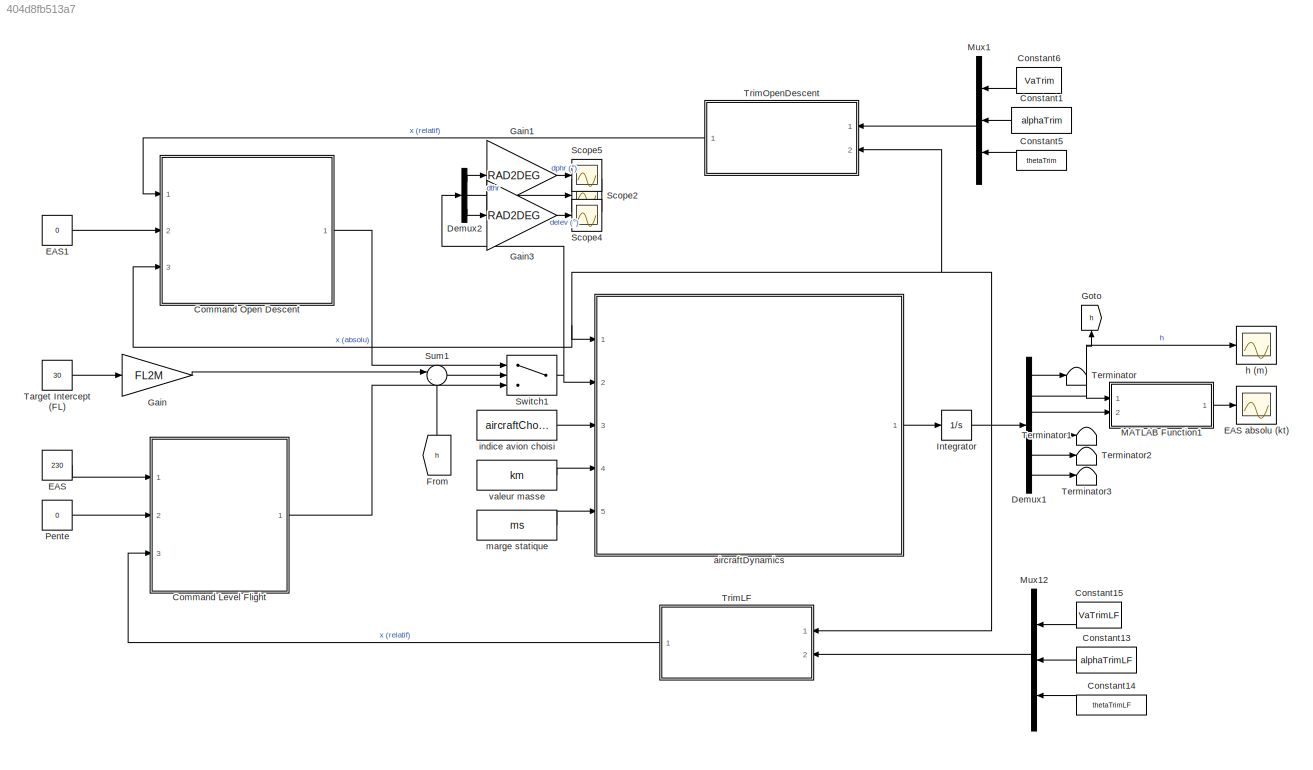
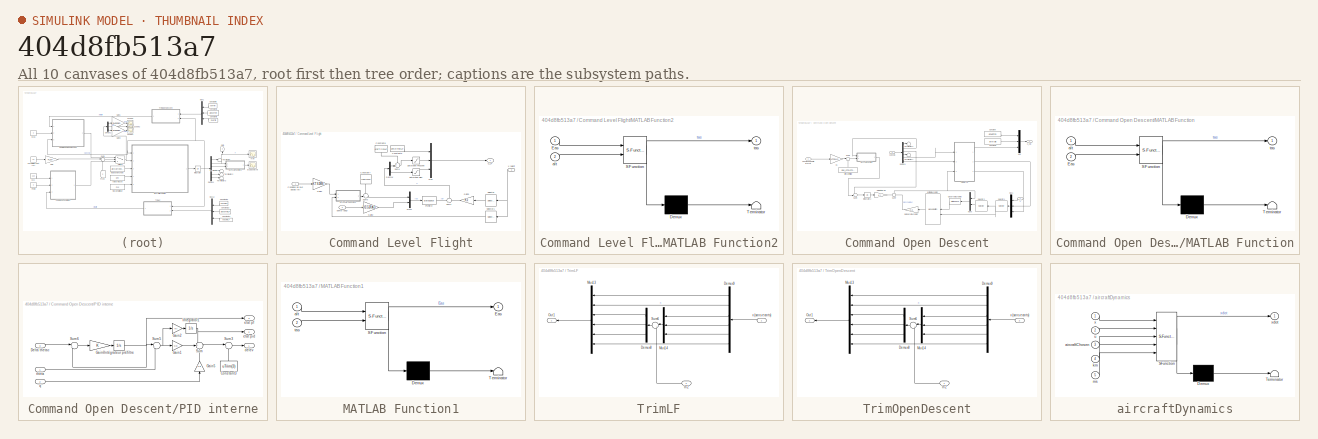
[diagram: thumbnail index - all 10 canvases of the model, root first then tree order]
MODEL slx_404d8fb513a7
KIND model
CONFIG AbsTol = auto
CONFIG EnableMultiTasking = off
CONFIG FixedStep = auto
CONFIG MaxStep = 1.2
CONFIG MinStep = auto
CONFIG RelTol = 1e-3
CONFIG SampleTimeConstraint = Unconstrained
CONFIG Solver = ode45
CONFIG SolverName = ode45
CONFIG StartTime = 0.0
CONFIG StopTime = 400
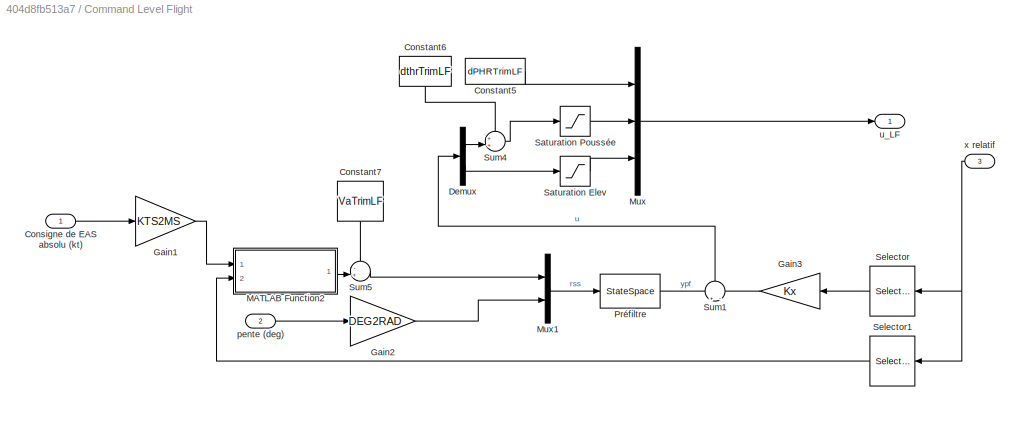
BLOCK [SubSystem] Command Level Flight
  Ports = [3, 1]
  RequestExecContextInheritance = off
BLOCK [Inport] Command Level Flight/Consigne de EAS absolu (kt)
  IconDisplay = Port number
BLOCK [Constant] Command Level Flight/Constant5
  Value = dPHRTrimLF
BLOCK [Constant] Command Level Flight/Constant6
  Value = dthrTrimLF
BLOCK [Constant] Command Level Flight/Constant7
  Value = VaTrimLF
BLOCK [Demux] Command Level Flight/Demux
  DisplayOption = bar
  Outputs = 2
  Ports = [1, 2]
BLOCK [Gain] Command Level Flight/Gain1
  Gain = KTS2MS
  OutDataTypeStr = Inherit: Inherit via internal rule
  ParamDataTypeStr = Inherit: Inherit via internal rule
  SaturateOnIntegerOverflow = off
BLOCK [Gain] Command Level Flight/Gain2
  Gain = DEG2RAD
  OutDataTypeStr = Inherit: Inherit via internal rule
  ParamDataTypeStr = Inherit: Inherit via internal rule
  SaturateOnIntegerOverflow = off
BLOCK [Gain] Command Level Flight/Gain3
  Gain = Kx
  Multiplication = Matrix(K*u) (u vector)
  OutDataTypeStr = Inherit: Inherit via internal rule
  ParamDataTypeStr = Inherit: Inherit via internal rule
  SaturateOnIntegerOverflow = off
BLOCK [SubSystem] Command Level Flight/MATLAB Function2
  ErrorFcn = Stateflow.Translate.translate
  PermitHierarchicalResolution = ExplicitOnly
  Ports = [2, 1]
  RequestExecContextInheritance = off
  SFBlockType = MATLAB Function
  TreatAsAtomicUnit = on
BLOCK [Demux] Command Level Flight/MATLAB Function2/ Demux 
  Outputs = 1
  Ports = [1, 1]
BLOCK [S-Function] Command Level Flight/MATLAB Function2/ SFunction 
  EnableBusSupport = on
  FunctionName = sf_sfun
  PortCounts = [2 2]
  Ports = [2, 2]
  SFcnIsStateOwnerBlock = off
  SFunctionDeploymentMode = off
  Tag = Stateflow S-Function Golf_Nonlin_Final 1
BLOCK [Terminator] Command Level Flight/MATLAB Function2/ Terminator 
BLOCK [Inport] Command Level Flight/MATLAB Function2/Eas
  IconDisplay = Port number
BLOCK [Inport] Command Level Flight/MATLAB Function2/alt
  IconDisplay = Port number
  Port = 2
BLOCK [Outport] Command Level Flight/MATLAB Function2/tas
  IconDisplay = Port number
BLOCK [Mux] Command Level Flight/Mux
  DisplayOption = bar
  Inputs = 3
  Ports = [3, 1]
BLOCK [Mux] Command Level Flight/Mux1
  DisplayOption = bar
  Inputs = 2
  Ports = [2, 1]
BLOCK [StateSpace] Command Level Flight/Préfiltre
  A = Ar
  B = Br
  C = -Kr
  D = Dpf
  InitialCondition = 0
  Ports = [1, 1]
BLOCK [Saturate] Command Level Flight/Saturation Elev
  InputPortMap = u0
  LowerLimit = -30*DEG2RAD
  Ports = [1, 1]
  UpperLimit = 30*DEG2RAD
BLOCK [Saturate] Command Level Flight/Saturation Poussée
  InputPortMap = u0
  LowerLimit = 0
  Ports = [1, 1]
  UpperLimit = 1
BLOCK [Selector] Command Level Flight/Selector
  IndexOptions = Index vector (dialog)
  Indices = [3:6]
  InputPortWidth = 6
  OutputSizes = 1
  Ports = [1, 1]
BLOCK [Selector] Command Level Flight/Selector1
  IndexOptions = Index vector (dialog)
  Indices = [2]
  InputPortWidth = 6
  OutputSizes = 1
  Ports = [1, 1]
BLOCK [Sum] Command Level Flight/Sum1
  IconShape = round
  InputSameDT = off
  Inputs = +|-
  OutDataTypeStr = Inherit: Inherit via internal rule
  Ports = [2, 1]
  SaturateOnIntegerOverflow = off
BLOCK [Sum] Command Level Flight/Sum4
  IconShape = round
  InputSameDT = off
  Inputs = ++|
  OutDataTypeStr = Inherit: Inherit via internal rule
  Ports = [2, 1]
  SaturateOnIntegerOverflow = off
BLOCK [Sum] Command Level Flight/Sum5
  IconShape = round
  InputSameDT = off
  Inputs = -+|
  OutDataTypeStr = Inherit: Inherit via internal rule
  Ports = [2, 1]
  SaturateOnIntegerOverflow = off
BLOCK [Inport] Command Level Flight/pente (deg)
  IconDisplay = Port number
  Port = 2
BLOCK [Outport] Command Level Flight/u_LF
  IconDisplay = Port number
BLOCK [Inport] Command Level Flight/x relatif
  IconDisplay = Port number
  Port = 3
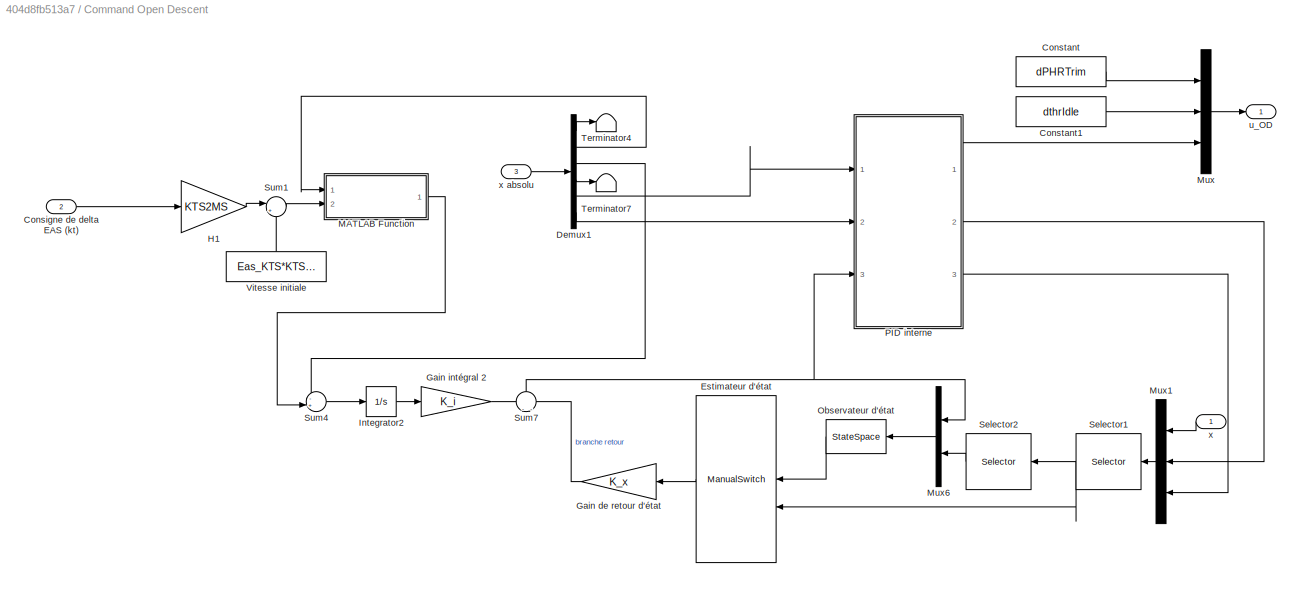
BLOCK [SubSystem] Command Open Descent
  Ports = [3, 1]
  RequestExecContextInheritance = off
BLOCK [Inport] Command Open Descent/Consigne de delta EAS (kt)
  IconDisplay = Port number
  Port = 2
BLOCK [Constant] Command Open Descent/Constant
  Value = dPHRTrim
BLOCK [Constant] Command Open Descent/Constant1
  Value = dthrIdle
BLOCK [Demux] Command Open Descent/Demux1
  DisplayOption = bar
  Outputs = 6
  Ports = [1, 6]
BLOCK [ManualSwitch] Command Open Descent/Estimateur d'état
  CurrentSetting = 0
BLOCK [Gain] Command Open Descent/Gain de retour d'état
  Gain = K_x
  Multiplication = Matrix(K*u) (u vector)
  OutDataTypeStr = Inherit: Inherit via internal rule
  ParamDataTypeStr = Inherit: Inherit via internal rule
  SaturateOnIntegerOverflow = off
BLOCK [Gain] Command Open Descent/Gain intégral 2
  Gain = K_i
  Multiplication = Matrix(K*u) (u vector)
  OutDataTypeStr = Inherit: Inherit via internal rule
  ParamDataTypeStr = Inherit: Inherit via internal rule
  SaturateOnIntegerOverflow = off
BLOCK [Gain] Command Open Descent/H1
  Gain = KTS2MS
  OutDataTypeStr = Inherit: Inherit via internal rule
  ParamDataTypeStr = Inherit: Inherit via internal rule
  SaturateOnIntegerOverflow = off
BLOCK [Integrator] Command Open Descent/Integrator2
  Ports = [1, 1]
BLOCK [SubSystem] Command Open Descent/MATLAB Function
  ErrorFcn = Stateflow.Translate.translate
  PermitHierarchicalResolution = ExplicitOnly
  Ports = [2, 1]
  RequestExecContextInheritance = off
  SFBlockType = MATLAB Function
  TreatAsAtomicUnit = on
BLOCK [Demux] Command Open Descent/MATLAB Function/ Demux 
  Outputs = 1
  Ports = [1, 1]
BLOCK [S-Function] Command Open Descent/MATLAB Function/ SFunction 
  EnableBusSupport = on
  FunctionName = sf_sfun
  PortCounts = [2 2]
  Ports = [2, 2]
  SFcnIsStateOwnerBlock = off
  SFunctionDeploymentMode = off
  Tag = Stateflow S-Function Golf_Nonlin_Final 4
BLOCK [Terminator] Command Open Descent/MATLAB Function/ Terminator 
BLOCK [Inport] Command Open Descent/MATLAB Function/Eas
  IconDisplay = Port number
  Port = 2
BLOCK [Inport] Command Open Descent/MATLAB Function/alt
  IconDisplay = Port number
BLOCK [Outport] Command Open Descent/MATLAB Function/tas
  IconDisplay = Port number
BLOCK [Mux] Command Open Descent/Mux
  DisplayOption = bar
  Inputs = 3
  Ports = [3, 1]
BLOCK [Mux] Command Open Descent/Mux1
  DisplayOption = bar
  Inputs = 3
  Ports = [3, 1]
BLOCK [Mux] Command Open Descent/Mux6
  DisplayOption = bar
  Inputs = 2
  Ports = [2, 1]
BLOCK [StateSpace] Command Open Descent/Observateur d'état
  A = A6-L6*Cobs
  B = [B6, L6]
  C = eye(6)
  D = zeros(6,4)
  InitialCondition = 0
  Ports = [1, 1]
BLOCK [SubSystem] Command Open Descent/PID interne
  Ports = [3, 3]
  RequestExecContextInheritance = off
BLOCK [Constant] Command Open Descent/PID interne/Constant3
  Value = uTrim(3)
BLOCK [Inport] Command Open Descent/PID interne/Delta thetac 
  IconDisplay = Port number
  Port = 3
BLOCK [Gain] Command Open Descent/PID interne/Gain1
  Gain = Kp
  OutDataTypeStr = Inherit: Inherit via internal rule
  ParamDataTypeStr = Inherit: Inherit via internal rule
  SaturateOnIntegerOverflow = off
BLOCK [Gain] Command Open Descent/PID interne/Gain2
  Gain = Ki
  OutDataTypeStr = Inherit: Inherit via internal rule
  ParamDataTypeStr = Inherit: Inherit via internal rule
  SaturateOnIntegerOverflow = off
BLOCK [Gain] Command Open Descent/PID interne/Gain5
  Gain = Kd
  OutDataTypeStr = Inherit: Inherit via internal rule
  ParamDataTypeStr = Inherit: Inherit via internal rule
  SaturateOnIntegerOverflow = off
BLOCK [Gain] Command Open Descent/PID interne/Gain6
  OutDataTypeStr = Inherit: Inherit via internal rule
  ParamDataTypeStr = Inherit: Inherit via internal rule
  SaturateOnIntegerOverflow = off
BLOCK [Integrator] Command Open Descent/PID interne/Integrator1
  Ports = [1, 1]
BLOCK [Integrator] Command Open Descent/PID interne/Intégrateur préfiltre
  Ports = [1, 1]
BLOCK [Sum] Command Open Descent/PID interne/Sum
  IconShape = round
  InputSameDT = off
  Inputs = ++-
  OutDataTypeStr = Inherit: Inherit via internal rule
  Ports = [3, 1]
  SaturateOnIntegerOverflow = off
BLOCK [Sum] Command Open Descent/PID interne/Sum3
  IconShape = round
  InputSameDT = off
  Inputs = |++
  OutDataTypeStr = Inherit: Inherit via internal rule
  Ports = [2, 1]
  SaturateOnIntegerOverflow = off
BLOCK [Sum] Command Open Descent/PID interne/Sum5
  IconShape = round
  InputSameDT = off
  Inputs = |+-
  OutDataTypeStr = Inherit: Inherit via internal rule
  Ports = [2, 1]
  SaturateOnIntegerOverflow = off
BLOCK [Sum] Command Open Descent/PID interne/Sum6
  IconShape = round
  InputSameDT = off
  Inputs = |+-
  OutDataTypeStr = Inherit: Inherit via internal rule
  Ports = [2, 1]
  SaturateOnIntegerOverflow = off
BLOCK [Outport] Command Open Descent/PID interne/delev
  IconDisplay = Port number
BLOCK [Outport] Command Open Descent/PID interne/etat pf 
  IconDisplay = Port number
  Port = 3
BLOCK [Outport] Command Open Descent/PID interne/etat pid
  IconDisplay = Port number
  Port = 2
BLOCK [Inport] Command Open Descent/PID interne/q
  IconDisplay = Port number
  Port = 2
BLOCK [Inport] Command Open Descent/PID interne/theta
  IconDisplay = Port number
BLOCK [Selector] Command Open Descent/Selector1
  IndexOptions = Index vector (dialog)
  Indices = [3:8]
  InputPortWidth = 8
  OutputSizes = 1
  Ports = [1, 1]
BLOCK [Selector] Command Open Descent/Selector2
  IndexOptions = Index vector (dialog)
  Indices = [1,3,4]
  InputPortWidth = 6
  OutputSizes = 1
  Ports = [1, 1]
BLOCK [Sum] Command Open Descent/Sum1
  IconShape = round
  InputSameDT = off
  Inputs = |++
  OutDataTypeStr = Inherit: Inherit via internal rule
  Ports = [2, 1]
  SaturateOnIntegerOverflow = off
BLOCK [Sum] Command Open Descent/Sum4
  IconShape = round
  InputSameDT = off
  Inputs = -+|
  OutDataTypeStr = Inherit: Inherit via internal rule
  Ports = [2, 1]
  SaturateOnIntegerOverflow = off
BLOCK [Sum] Command Open Descent/Sum7
  IconShape = round
  InputSameDT = off
  Inputs = -|-
  OutDataTypeStr = Inherit: Inherit via internal rule
  Ports = [2, 1]
  SaturateOnIntegerOverflow = off
BLOCK [Terminator] Command Open Descent/Terminator4
BLOCK [Terminator] Command Open Descent/Terminator7
BLOCK [Constant] Command Open Descent/Vitesse initiale
  Value = Eas_KTS*KTS2MS
BLOCK [Outport] Command Open Descent/u_OD
  IconDisplay = Port number
BLOCK [Inport] Command Open Descent/x
  IconDisplay = Port number
BLOCK [Inport] Command Open Descent/x absolu
  IconDisplay = Port number
  Port = 3
BLOCK [Constant] Constant1
  Value = alphaTrim
BLOCK [Constant] Constant13
  Value = alphaTrimLF
BLOCK [Constant] Constant14
  Value = thetaTrimLF
BLOCK [Constant] Constant15
  Value = VaTrimLF
BLOCK [Constant] Constant5
  Value = thetaTrim
BLOCK [Constant] Constant6
  Value = VaTrim
BLOCK [Demux] Demux1
  DisplayOption = bar
  Outputs = 6
  Ports = [1, 6]
BLOCK [Demux] Demux2
  DisplayOption = bar
  Outputs = 3
  Ports = [1, 3]
BLOCK [Constant] EAS
  Value = 230
BLOCK [Scope] EAS absolu (kt)
  Floating = off
  NumInputPorts = 1
  Ports = [1]
  ScopeSpecificationString = Simulink.scopes.TimeScopeBlockCfg('CurrentConfiguration', extmgr.ConfigurationSet(extmgr.Configuration('Core','General UI',true,'FigureColor',[1 1 1]),extmgr.Configuration('Core','Source UI',true),extmgr.Configuration('Sources','WiredSimulink',true,'DataLoggingVariableName','ScopeData1'),extmgr.Configuration('Visuals','Time Domain',true,'SerializedDisplays',{struct('MinYLimReal','229.89487','MaxYL...<+1586ch>
BLOCK [Constant] EAS1
  Value = 0
BLOCK [From] From
  GotoTag = h
BLOCK [Gain] Gain
  Gain = FL2M
  OutDataTypeStr = Inherit: Inherit via internal rule
  ParamDataTypeStr = Inherit: Inherit via internal rule
  SaturateOnIntegerOverflow = off
BLOCK [Gain] Gain1
  Gain = RAD2DEG
  OutDataTypeStr = Inherit: Inherit via internal rule
  ParamDataTypeStr = Inherit: Inherit via internal rule
  SaturateOnIntegerOverflow = off
BLOCK [Gain] Gain3
  Gain = RAD2DEG
  OutDataTypeStr = Inherit: Inherit via internal rule
  ParamDataTypeStr = Inherit: Inherit via internal rule
  SaturateOnIntegerOverflow = off
BLOCK [Goto] Goto
  GotoTag = h
BLOCK [Integrator] Integrator
  InitialCondition = xTrim
  Ports = [1, 1]
BLOCK [SubSystem] MATLAB Function1
  ErrorFcn = Stateflow.Translate.translate
  PermitHierarchicalResolution = ExplicitOnly
  Ports = [2, 1]
  RequestExecContextInheritance = off
  SFBlockType = MATLAB Function
  TreatAsAtomicUnit = on
BLOCK [Demux] MATLAB Function1/ Demux 
  Outputs = 1
  Ports = [1, 1]
BLOCK [S-Function] MATLAB Function1/ SFunction 
  EnableBusSupport = on
  FunctionName = sf_sfun
  PortCounts = [2 2]
  Ports = [2, 2]
  SFcnIsStateOwnerBlock = off
  SFunctionDeploymentMode = off
  Tag = Stateflow S-Function Golf_Nonlin_Final 3
BLOCK [Terminator] MATLAB Function1/ Terminator 
BLOCK [Outport] MATLAB Function1/Eas
  IconDisplay = Port number
BLOCK [Inport] MATLAB Function1/alt
  IconDisplay = Port number
BLOCK [Inport] MATLAB Function1/tas
  IconDisplay = Port number
  Port = 2
BLOCK [Mux] Mux1
  DisplayOption = bar
  Inputs = 3
  Ports = [3, 1]
BLOCK [Mux] Mux12
  DisplayOption = bar
  Inputs = 3
  Ports = [3, 1]
BLOCK [Constant] Pente
  Value = 0
BLOCK [Scope] Scope2
  Floating = off
  NumInputPorts = 1
  Ports = [1]
  ScopeSpecificationString = Simulink.scopes.TimeScopeBlockCfg('CurrentConfiguration', extmgr.ConfigurationSet(extmgr.Configuration('Core','General UI',true,'FigureColor',[1 1 1]),extmgr.Configuration('Core','Source UI',true),extmgr.Configuration('Sources','WiredSimulink',true,'DataLoggingVariableName','ScopeData1'),extmgr.Configuration('Visuals','Time Domain',true,'SerializedDisplays',{struct('MinYLimReal','-0.125','MaxYLimR...<+1509ch>
BLOCK [Scope] Scope4
  Floating = off
  NumInputPorts = 1
  Ports = [1]
  ScopeSpecificationString = Simulink.scopes.TimeScopeBlockCfg('CurrentConfiguration', extmgr.ConfigurationSet(extmgr.Configuration('Core','General UI',true,'FigureColor',[1 1 1]),extmgr.Configuration('Core','Source UI',true),extmgr.Configuration('Sources','WiredSimulink',true,'DataLoggingVariableName','ScopeData4'),extmgr.Configuration('Visuals','Time Domain',true,'SerializedDisplays',{struct('MinYLimReal','-35.39849','MaxYL...<+1532ch>
BLOCK [Scope] Scope5
  Floating = off
  NumInputPorts = 1
  Ports = [1]
  ScopeSpecificationString = Simulink.scopes.TimeScopeBlockCfg('CurrentConfiguration', extmgr.ConfigurationSet(extmgr.Configuration('Core','General UI',true,'FigureColor',[1 1 1]),extmgr.Configuration('Core','Source UI',true),extmgr.Configuration('Sources','WiredSimulink',true,'DataLoggingVariableName','ScopeData5'),extmgr.Configuration('Visuals','Time Domain',true,'SerializedDisplays',{struct('MinYLimReal','-10.02515','MaxYL...<+1531ch>
BLOCK [Sum] Sum1
  IconShape = round
  InputSameDT = off
  Inputs = |-+
  OutDataTypeStr = Inherit: Inherit via internal rule
  Ports = [2, 1]
  SaturateOnIntegerOverflow = off
BLOCK [Switch] Switch1
  Criteria = u2 > Threshold
  InputSameDT = off
  SaturateOnIntegerOverflow = off
BLOCK [Constant] Target Intercept (FL)
  Value = 30
BLOCK [Terminator] Terminator
BLOCK [Terminator] Terminator1
BLOCK [Terminator] Terminator2
BLOCK [Terminator] Terminator3
BLOCK [SubSystem] TrimLF
  Ports = [2, 1]
  RequestExecContextInheritance = off
BLOCK [Demux] TrimLF/Demux8
  DisplayOption = bar
  Outputs = 3
  Ports = [1, 3]
BLOCK [Demux] TrimLF/Demux9
  DisplayOption = bar
  Outputs = 6
  Ports = [1, 6]
BLOCK [Inport] TrimLF/In2
  IconDisplay = Port number
  Port = 2
BLOCK [Mux] TrimLF/Mux13
  DisplayOption = bar
  Inputs = 6
  Ports = [6, 1]
BLOCK [Mux] TrimLF/Mux14
  DisplayOption = bar
  Inputs = 3
  Ports = [3, 1]
BLOCK [Outport] TrimLF/Out1
  IconDisplay = Port number
BLOCK [Sum] TrimLF/Sum6
  IconShape = round
  InputSameDT = off
  Inputs = |+-
  OutDataTypeStr = Inherit: Inherit via internal rule
  Ports = [2, 1]
  SaturateOnIntegerOverflow = off
BLOCK [Inport] TrimLF/x (sans ecarts)
  IconDisplay = Port number
BLOCK [SubSystem] TrimOpenDescent
  Ports = [2, 1]
  RequestExecContextInheritance = off
BLOCK [Demux] TrimOpenDescent/Demux8
  DisplayOption = bar
  Outputs = 3
  Ports = [1, 3]
BLOCK [Demux] TrimOpenDescent/Demux9
  DisplayOption = bar
  Outputs = 6
  Ports = [1, 6]
BLOCK [Inport] TrimOpenDescent/In2
  IconDisplay = Port number
BLOCK [Mux] TrimOpenDescent/Mux13
  DisplayOption = bar
  Inputs = 6
  Ports = [6, 1]
BLOCK [Mux] TrimOpenDescent/Mux14
  DisplayOption = bar
  Inputs = 3
  Ports = [3, 1]
BLOCK [Outport] TrimOpenDescent/Out1
  IconDisplay = Port number
BLOCK [Sum] TrimOpenDescent/Sum6
  IconShape = round
  InputSameDT = off
  Inputs = |+-
  OutDataTypeStr = Inherit: Inherit via internal rule
  Ports = [2, 1]
  SaturateOnIntegerOverflow = off
BLOCK [Inport] TrimOpenDescent/x (sans ecarts)
  IconDisplay = Port number
  Port = 2
BLOCK [SubSystem] aircraftDynamics
  ErrorFcn = Stateflow.Translate.translate
  PermitHierarchicalResolution = ExplicitOnly
  Ports = [5, 1]
  RequestExecContextInheritance = off
  SFBlockType = MATLAB Function
  TreatAsAtomicUnit = on
BLOCK [Demux] aircraftDynamics/ Demux 
  Outputs = 1
  Ports = [1, 1]
BLOCK [S-Function] aircraftDynamics/ SFunction 
  EnableBusSupport = on
  FunctionName = sf_sfun
  PortCounts = [5 2]
  Ports = [5, 2]
  SFcnIsStateOwnerBlock = off
  SFunctionDeploymentMode = off
  Tag = Stateflow S-Function Golf_Nonlin_Final 2
BLOCK [Terminator] aircraftDynamics/ Terminator 
BLOCK [Inport] aircraftDynamics/aircraftChosen
  IconDisplay = Port number
  Port = 3
BLOCK [Inport] aircraftDynamics/km
  IconDisplay = Port number
  Port = 4
BLOCK [Inport] aircraftDynamics/ms
  IconDisplay = Port number
  Port = 5
BLOCK [Inport] aircraftDynamics/u
  IconDisplay = Port number
  Port = 2
BLOCK [Inport] aircraftDynamics/x
  IconDisplay = Port number
BLOCK [Outport] aircraftDynamics/xdot
  IconDisplay = Port number
BLOCK [Scope] h (m)
  Floating = off
  NumInputPorts = 1
  Ports = [1]
  ScopeSpecificationString = Simulink.scopes.TimeScopeBlockCfg('CurrentConfiguration', extmgr.ConfigurationSet(extmgr.Configuration('Core','General UI',true,'FigureColor',[1 1 1]),extmgr.Configuration('Core','Source UI',true),extmgr.Configuration('Sources','WiredSimulink',true,'DataLoggingVariableName','ScopeData2'),extmgr.Configuration('Visuals','Time Domain',true,'SerializedDisplays',{struct('MinYLimReal','448.95947','MaxYL...<+1582ch>
BLOCK [Constant] indice avion choisi
  Value = aircraftChosen
BLOCK [Constant] marge statique
  Value = ms
BLOCK [Constant] valeur masse
  Value = km
LINE Command Level Flight/Consigne de EAS absolu (kt):1 -> Command Level Flight/Gain1:1
LINE Command Level Flight/Constant5:1 -> Command Level Flight/Mux:1
LINE Command Level Flight/Constant6:1 -> Command Level Flight/Sum4:1
LINE Command Level Flight/Constant7:1 -> Command Level Flight/Sum5:1
LINE Command Level Flight/Demux:1 -> Command Level Flight/Sum4:2
LINE Command Level Flight/Demux:2 -> Command Level Flight/Saturation Elev:1
LINE Command Level Flight/Gain1:1 -> Command Level Flight/MATLAB Function2:1
LINE Command Level Flight/Gain2:1 -> Command Level Flight/Mux1:2
LINE Command Level Flight/Gain3:1 -> Command Level Flight/Sum1:2
LINE Command Level Flight/MATLAB Function2:1 -> Command Level Flight/Sum5:2
LINE Command Level Flight/Mux1:1 -> Command Level Flight/Préfiltre:1
LINE Command Level Flight/Mux:1 -> Command Level Flight/u_LF:1
LINE Command Level Flight/Préfiltre:1 -> Command Level Flight/Sum1:1
LINE Command Level Flight/Saturation Elev:1 -> Command Level Flight/Mux:3
LINE Command Level Flight/Saturation Poussée:1 -> Command Level Flight/Mux:2
LINE Command Level Flight/Selector1:1 -> Command Level Flight/MATLAB Function2:2
LINE Command Level Flight/Selector:1 -> Command Level Flight/Gain3:1
LINE Command Level Flight/Sum1:1 -> Command Level Flight/Demux:1
LINE Command Level Flight/Sum4:1 -> Command Level Flight/Saturation Poussée:1
LINE Command Level Flight/Sum5:1 -> Command Level Flight/Mux1:1
LINE Command Level Flight/pente (deg):1 -> Command Level Flight/Gain2:1
NET Command Level Flight/x relatif:1 -> Command Level Flight/Selector1:1, Command Level Flight/Selector:1
LINE Command Level Flight:1 -> Switch1:3
LINE Command Open Descent/Consigne de delta EAS (kt):1 -> Command Open Descent/H1:1
LINE Command Open Descent/Constant1:1 -> Command Open Descent/Mux:2
LINE Command Open Descent/Constant:1 -> Command Open Descent/Mux:1
LINE Command Open Descent/Demux1:1 -> Command Open Descent/Terminator4:1
LINE Command Open Descent/Demux1:2 -> Command Open Descent/MATLAB Function:1
LINE Command Open Descent/Demux1:3 -> Command Open Descent/Sum4:1
LINE Command Open Descent/Demux1:4 -> Command Open Descent/Terminator7:1
LINE Command Open Descent/Demux1:5 -> Command Open Descent/PID interne:1
LINE Command Open Descent/Demux1:6 -> Command Open Descent/PID interne:2
LINE Command Open Descent/Estimateur d'état:1 -> Command Open Descent/Gain de retour d'état:1
LINE Command Open Descent/Gain de retour d'état:1 -> Command Open Descent/Sum7:2
LINE Command Open Descent/Gain intégral 2:1 -> Command Open Descent/Sum7:1
LINE Command Open Descent/H1:1 -> Command Open Descent/Sum1:1
LINE Command Open Descent/Integrator2:1 -> Command Open Descent/Gain intégral 2:1
LINE Command Open Descent/MATLAB Function:1 -> Command Open Descent/Sum4:2
LINE Command Open Descent/Mux1:1 -> Command Open Descent/Selector1:1
LINE Command Open Descent/Mux6:1 -> Command Open Descent/Observateur d'état:1
LINE Command Open Descent/Mux:1 -> Command Open Descent/u_OD:1
LINE Command Open Descent/Observateur d'état:1 -> Command Open Descent/Estimateur d'état:1
LINE Command Open Descent/PID interne/Constant3:1 -> Command Open Descent/PID interne/Sum3:2
LINE Command Open Descent/PID interne/Delta thetac :1 -> Command Open Descent/PID interne/Sum6:1
LINE Command Open Descent/PID interne/Gain1:1 -> Command Open Descent/PID interne/Sum:2
LINE Command Open Descent/PID interne/Gain2:1 -> Command Open Descent/PID interne/Integrator1:1
LINE Command Open Descent/PID interne/Gain5:1 -> Command Open Descent/PID interne/Sum:3
LINE Command Open Descent/PID interne/Gain6:1 -> Command Open Descent/PID interne/Intégrateur préfiltre:1
NET Command Open Descent/PID interne/Integrator1:1 -> Command Open Descent/PID interne/Sum:1, Command Open Descent/PID interne/etat pid:1
NET Command Open Descent/PID interne/Intégrateur préfiltre:1 -> Command Open Descent/PID interne/Sum5:1, Command Open Descent/PID interne/Sum6:2, Command Open Descent/PID interne/etat pf :1
LINE Command Open Descent/PID interne/Sum3:1 -> Command Open Descent/PID interne/delev:1
NET Command Open Descent/PID interne/Sum5:1 -> Command Open Descent/PID interne/Gain1:1, Command Open Descent/PID interne/Gain2:1
LINE Command Open Descent/PID interne/Sum6:1 -> Command Open Descent/PID interne/Gain6:1
LINE Command Open Descent/PID interne/Sum:1 -> Command Open Descent/PID interne/Sum3:1
LINE Command Open Descent/PID interne/q:1 -> Command Open Descent/PID interne/Gain5:1
LINE Command Open Descent/PID interne/theta:1 -> Command Open Descent/PID interne/Sum5:2
LINE Command Open Descent/PID interne:1 -> Command Open Descent/Mux:3
LINE Command Open Descent/PID interne:2 -> Command Open Descent/Mux1:2
LINE Command Open Descent/PID interne:3 -> Command Open Descent/Mux1:3
NET Command Open Descent/Selector1:1 -> Command Open Descent/Estimateur d'état:2, Command Open Descent/Selector2:1
LINE Command Open Descent/Selector2:1 -> Command Open Descent/Mux6:2
LINE Command Open Descent/Sum1:1 -> Command Open Descent/MATLAB Function:2
LINE Command Open Descent/Sum4:1 -> Command Open Descent/Integrator2:1
NET Command Open Descent/Sum7:1 -> Command Open Descent/Mux6:1, Command Open Descent/PID interne:3
LINE Command Open Descent/Vitesse initiale:1 -> Command Open Descent/Sum1:2
LINE Command Open Descent/x absolu:1 -> Command Open Descent/Demux1:1
LINE Command Open Descent/x:1 -> Command Open Descent/Mux1:1
LINE Command Open Descent:1 -> Switch1:1
LINE Constant13:1 -> Mux12:2
LINE Constant14:1 -> Mux12:3
LINE Constant15:1 -> Mux12:1
LINE Constant1:1 -> Mux1:2
LINE Constant5:1 -> Mux1:3
LINE Constant6:1 -> Mux1:1
LINE Demux1:1 -> Terminator:1
NET Demux1:2 -> Goto:1, MATLAB Function1:1, h (m):1
LINE Demux1:3 -> MATLAB Function1:2
LINE Demux1:4 -> Terminator1:1
LINE Demux1:5 -> Terminator2:1
LINE Demux1:6 -> Terminator3:1
LINE Demux2:1 -> Gain1:1
LINE Demux2:2 -> Scope2:1
LINE Demux2:3 -> Gain3:1
LINE EAS1:1 -> Command Open Descent:2
LINE EAS:1 -> Command Level Flight:1
LINE From:1 -> Sum1:2
LINE Gain1:1 -> Scope5:1
LINE Gain3:1 -> Scope4:1
LINE Gain:1 -> Sum1:1
NET Integrator:1 -> Command Open Descent:3, Demux1:1, TrimLF:1, TrimOpenDescent:2, aircraftDynamics:1
LINE MATLAB Function1:1 -> EAS absolu (kt):1
LINE Mux12:1 -> TrimLF:2
LINE Mux1:1 -> TrimOpenDescent:1
LINE Pente:1 -> Command Level Flight:2
LINE Sum1:1 -> Switch1:2
NET Switch1:1 -> Demux2:1, aircraftDynamics:2
LINE Target Intercept (FL):1 -> Gain:1
LINE TrimLF/Demux8:1 -> TrimLF/Mux13:3
LINE TrimLF/Demux8:2 -> TrimLF/Mux13:4
LINE TrimLF/Demux8:3 -> TrimLF/Mux13:5
LINE TrimLF/Demux9:1 -> TrimLF/Mux13:1
LINE TrimLF/Demux9:2 -> TrimLF/Mux13:2
LINE TrimLF/Demux9:3 -> TrimLF/Mux14:1
LINE TrimLF/Demux9:4 -> TrimLF/Mux14:2
LINE TrimLF/Demux9:5 -> TrimLF/Mux14:3
LINE TrimLF/Demux9:6 -> TrimLF/Mux13:6
LINE TrimLF/In2:1 -> TrimLF/Sum6:2
LINE TrimLF/Mux13:1 -> TrimLF/Out1:1
LINE TrimLF/Mux14:1 -> TrimLF/Sum6:1
LINE TrimLF/Sum6:1 -> TrimLF/Demux8:1
LINE TrimLF/x (sans ecarts):1 -> TrimLF/Demux9:1
LINE TrimLF:1 -> Command Level Flight:3
LINE TrimOpenDescent/Demux8:1 -> TrimOpenDescent/Mux13:3
LINE TrimOpenDescent/Demux8:2 -> TrimOpenDescent/Mux13:4
LINE TrimOpenDescent/Demux8:3 -> TrimOpenDescent/Mux13:5
LINE TrimOpenDescent/Demux9:1 -> TrimOpenDescent/Mux13:1
LINE TrimOpenDescent/Demux9:2 -> TrimOpenDescent/Mux13:2
LINE TrimOpenDescent/Demux9:3 -> TrimOpenDescent/Mux14:1
LINE TrimOpenDescent/Demux9:4 -> TrimOpenDescent/Mux14:2
LINE TrimOpenDescent/Demux9:5 -> TrimOpenDescent/Mux14:3
LINE TrimOpenDescent/Demux9:6 -> TrimOpenDescent/Mux13:6
LINE TrimOpenDescent/In2:1 -> TrimOpenDescent/Sum6:2
LINE TrimOpenDescent/Mux13:1 -> TrimOpenDescent/Out1:1
LINE TrimOpenDescent/Mux14:1 -> TrimOpenDescent/Sum6:1
LINE TrimOpenDescent/Sum6:1 -> TrimOpenDescent/Demux8:1
LINE TrimOpenDescent/x (sans ecarts):1 -> TrimOpenDescent/Demux9:1
LINE TrimOpenDescent:1 -> Command Open Descent:1
LINE aircraftDynamics:1 -> Integrator:1
LINE indice avion choisi:1 -> aircraftDynamics:3
LINE marge statique:1 -> aircraftDynamics:5
LINE valeur masse:1 -> aircraftDynamics:4
note: NET lines group one-source signal fan-out (src -> all destinations, sorted); 1:1 wires keep LINE
CHART Command Level Flight/MATLAB Function2 states=1 transitions=1
  STATE_LABEL 'eML_blk_kernel()'
  STATE_LABEL 'SCRIPT:\nfunction tas = utEas2tas(Eas, alt)\n    %tas, Eas (%equivalent vitesse) en m/s\n    %alt en m\n    %cf. http://www.hochwarth.com/misc/AviationCalculator.html\n    tas = sqrt(utRho(0)/utRho(alt))*Eas;\nend '
CHART aircraftDynamics states=1 transitions=1
  STATE_LABEL 'eML_blk_kernel()'
  STATE_LABEL 'SCRIPT:\nfunction xdot = aircraftDynamics(x,u, aircraftChosen,km,ms)\n    TOTAL_SV = 6;\n    xIn = zeros(TOTAL_SV,1);\n    xIn = x;\n    \n\tTOTAL_CMD = 3;\n    uIn = zeros(TOTAL_CMD,1);\n    uIn = u;\n    \n    xdot = utAcDynamicsFunction(xIn,uIn, aircraftChosen,km,ms);\nend %aircraftDynamics\n\n'
CHART MATLAB Function1 states=1 transitions=1
  STATE_LABEL 'eML_blk_kernel()'
  STATE_LABEL 'SCRIPT:\nfunction Eas = utTas2Eas(alt, tas)\n    %tas, Eas(%equivalent vitesse) en m/s\n    %alt en m\n    %cf. http://www.hochwarth.com/misc/AviationCalculator.html\n    Eas = sqrt(utRho(alt)/utRho(0))*tas/0.5144;\n    %sortie en kt\nend '
CHART Command Open Descent/MATLAB Function states=1 transitions=1
  STATE_LABEL 'eML_blk_kernel()'
  STATE_LABEL 'SCRIPT:\nfunction tas = utEas2tas(alt, Eas)\n    %tas, Eas (%equivalent vitesse) en m/s\n    %alt en m\n    %cf. http://www.hochwarth.com/misc/AviationCalculator.html\n    tas = sqrt(utRho(0)/utRho(alt))*Eas;\nend \n'
